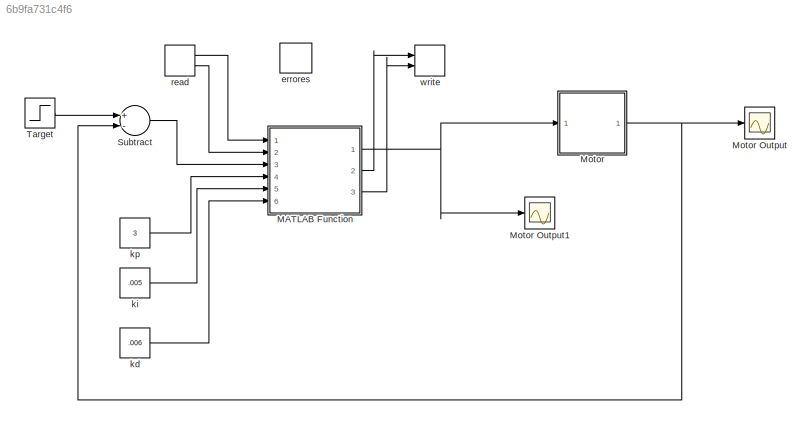
MODEL slx_6b9fa731c4f6
KIND model
CONFIG AbsTol = auto
CONFIG EnableMultiTasking = off
CONFIG FixedStep = auto
CONFIG MaxStep = auto
CONFIG MinStep = auto
CONFIG RelTol = 1e-3
CONFIG SampleTimeConstraint = Unconstrained
CONFIG Solver = VariableStepAuto
CONFIG SolverName = VariableStepAuto
CONFIG StartTime = 0.0
CONFIG StopTime = 10.0
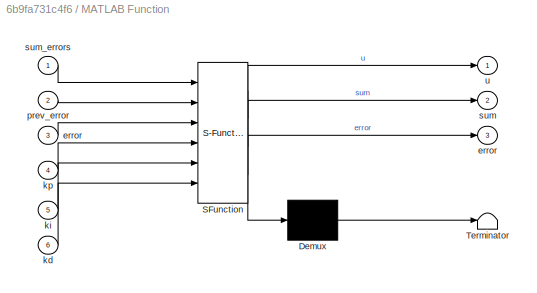
BLOCK [SubSystem] MATLAB Function
  ErrorFcn = Stateflow.Translate.translate
  PermitHierarchicalResolution = ExplicitOnly
  Ports = [6, 3]
  RequestExecContextInheritance = off
  SFBlockType = MATLAB Function
  TreatAsAtomicUnit = on
  Variant = off
BLOCK [Demux] MATLAB Function/ Demux 
  Outputs = 1
  Ports = [1, 1]
BLOCK [S-Function] MATLAB Function/ SFunction 
  EnableBusSupport = on
  FunctionName = sf_sfun
  PortCounts = [6 4]
  Ports = [6, 4]
  SFcnIsStateOwnerBlock = off
  SFunctionDeploymentMode = off
  Tag = Stateflow S-Function PID_flam_Matlab 2
BLOCK [Terminator] MATLAB Function/ Terminator 
BLOCK [Outport] MATLAB Function/error
  IconDisplay = Port number
  Port = 3
BLOCK [Inport] MATLAB Function/error 
  IconDisplay = Port number
  Port = 3
BLOCK [Inport] MATLAB Function/kd
  IconDisplay = Port number
  Port = 6
BLOCK [Inport] MATLAB Function/ki
  IconDisplay = Port number
  Port = 5
BLOCK [Inport] MATLAB Function/kp
  IconDisplay = Port number
  Port = 4
BLOCK [Inport] MATLAB Function/prev_error
  IconDisplay = Port number
  Port = 2
BLOCK [Outport] MATLAB Function/sum
  IconDisplay = Port number
  Port = 2
BLOCK [Inport] MATLAB Function/sum_errors
  IconDisplay = Port number
BLOCK [Outport] MATLAB Function/u
  IconDisplay = Port number
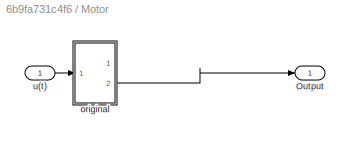
BLOCK [SubSystem] Motor
  Ports = [1, 1]
  RequestExecContextInheritance = off
  Variant = off
BLOCK [Scope] Motor Output
  NumInputPorts = 1
  Ports = [1]
  ScopeSpecificationString = Simulink.scopes.TimeScopeBlockCfg('CurrentConfiguration', extmgr.ConfigurationSet(extmgr.Configuration('Core','General UI',true),extmgr.Configuration('Core','Source UI',true),extmgr.Configuration('Sources','WiredSimulink',true),extmgr.Configuration('Visuals','Time Domain',true,'SerializedDisplays',{struct('MinYLimReal','0.81271','MaxYLimReal','1.35994','YLabelReal','','MinYLimMag','0.81271','MaxYL...<+1398ch>
BLOCK [Scope] Motor Output1
  NumInputPorts = 1
  Ports = [1]
  ScopeSpecificationString = Simulink.scopes.TimeScopeBlockCfg('CurrentConfiguration', extmgr.ConfigurationSet(extmgr.Configuration('Core','General UI',true),extmgr.Configuration('Core','Source UI',true),extmgr.Configuration('Sources','WiredSimulink',true,'DataLoggingVariableName','ScopeData1'),extmgr.Configuration('Visuals','Time Domain',true,'SerializedDisplays',{struct('MinYLimReal','0.81271','MaxYLimReal','1.35994','YLabe...<+1448ch>
BLOCK [Outport] Motor/Output
  IconDisplay = Port number
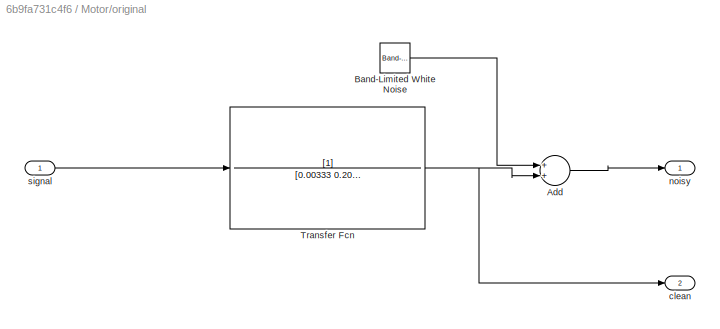
BLOCK [SubSystem] Motor/original
  Ports = [1, 2]
  RequestExecContextInheritance = off
  Variant = off
BLOCK [Sum] Motor/original/Add
  InputSameDT = off
  OutDataTypeStr = Inherit: Inherit via internal rule
  Ports = [2, 1]
  SaturateOnIntegerOverflow = off
BLOCK [Reference] Motor/original/Band-Limited White Noise  REF=simulink/Sources/Band-Limited
White Noise
  Ports = [0, 1]
  SourceBlock = simulink/Sources/Band-Limited\nWhite Noise
  SourceProductBaseCode = SL
  SourceProductName = Simulink
  SourceType = Band-Limited White Noise.
BLOCK [TransferFcn] Motor/original/Transfer Fcn
  Denominator = [0.00333 0.201 1]
BLOCK [Outport] Motor/original/clean
  IconDisplay = Port number
  Port = 2
BLOCK [Outport] Motor/original/noisy
  IconDisplay = Port number
BLOCK [Inport] Motor/original/signal
  IconDisplay = Port number
BLOCK [Inport] Motor/u(t)
  IconDisplay = Port number
BLOCK [Sum] Subtract
  InputSameDT = off
  Inputs = +-
  OutDataTypeStr = Inherit: Inherit via internal rule
  Ports = [2, 1]
  SaturateOnIntegerOverflow = off
BLOCK [Step] Target
  SampleTime = 1
BLOCK [DataStoreMemory] errores
  DataLoggingDecimateData = on
  DataLoggingLimitDataPoints = on
  Dimensions = 2
  InitialValue = [0,0]
  ReadBeforeWriteMsg = warning
  ShowAdditionalParam = off
  WriteAfterReadMsg = warning
  WriteAfterWriteMsg = warning
BLOCK [Constant] kd
  Value = .006
BLOCK [Constant] ki
  Value = .005
BLOCK [Constant] kp 
  Value = 3
BLOCK [DataStoreRead] read
  DataStoreElements = A(1)#A(2)
  Ports = [0, 2]
BLOCK [DataStoreWrite] write
  DataStoreElements = A(1)#A(2)
  Ports = [2]
NET MATLAB Function:1 -> Motor Output1:1, Motor:1
LINE MATLAB Function:2 -> write:1
LINE MATLAB Function:3 -> write:2
LINE Motor/original/Add:1 -> Motor/original/noisy:1
LINE Motor/original/Band-Limited White Noise:1 -> Motor/original/Add:1
NET Motor/original/Transfer Fcn:1 -> Motor/original/Add:2, Motor/original/clean:1
LINE Motor/original/signal:1 -> Motor/original/Transfer Fcn:1
LINE Motor/original:2 -> Motor/Output:1
LINE Motor/u(t):1 -> Motor/original:1
NET Motor:1 -> Motor Output:1, Subtract:2
LINE Subtract:1 -> MATLAB Function:3
LINE Target:1 -> Subtract:1
LINE kd:1 -> MATLAB Function:6
LINE ki:1 -> MATLAB Function:5
LINE kp :1 -> MATLAB Function:4
LINE read:1 -> MATLAB Function:1
LINE read:2 -> MATLAB Function:2
note: NET lines group one-source signal fan-out (src -> all destinations, sorted); 1:1 wires keep LINE
CHART MATLAB Function states=1 transitions=1
  STATE_LABEL 'eML_blk_kernel()'
  STATE_LABEL 'SCRIPT:\nfunction [u,sum, error]= fcn(sum_errors, prev_error, error,kp, ki, kd)\n    p = kp*error;\n    \n    sum = error + sum_errors;\n    i = ki*sum;\n    \n    dif = error - prev_error;\n    d = kd*dif; \n    \n    u = p + i +d;\n'
